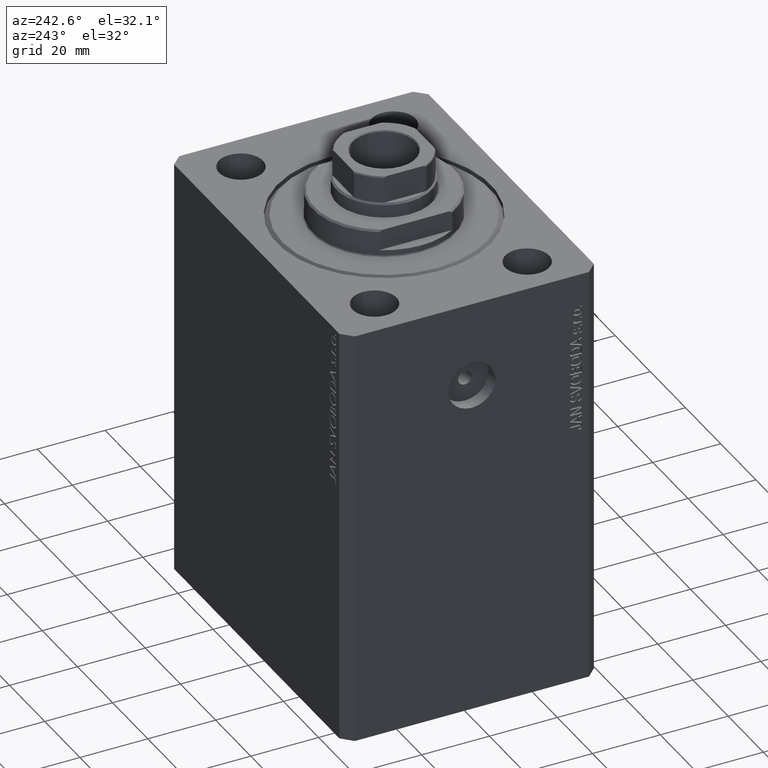
[diagram: clean part render]
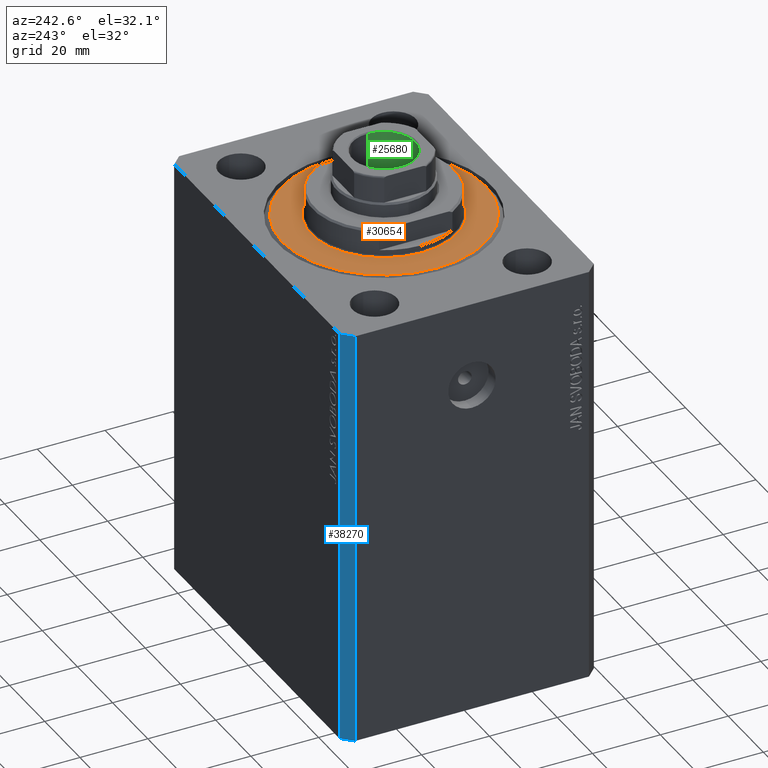
[diagram: same view with three faces highlighted in distinct colors, each labeled with its STEP entity id]
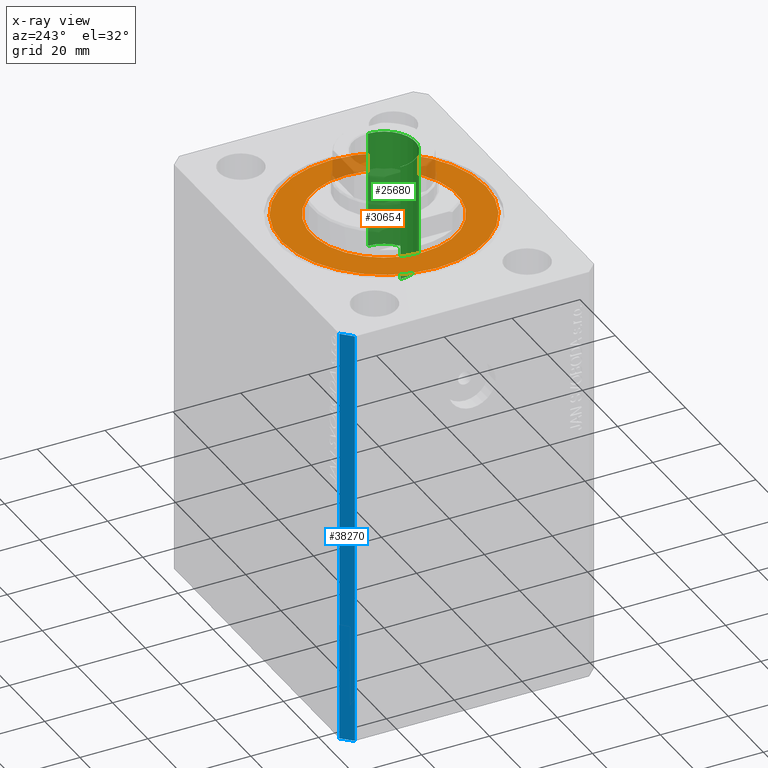
[diagram: x-ray of the same camera — body ghosted, the three highlighted faces saturated]
A machine part, auxiliary view with three faces highlighted in distinct colors.
The next image is the same camera in x-ray (body ghosted, the three faces saturated) — at least one of them is partly hidden behind the body in this view.
Their STEP definitions:

[orange] entity #30654 — the highlighted planar face has unit normal (0, 0, -1).
#51 = DIRECTION ( 'NONE',  ( 1.000000000000000000, 0.000000000000000000, 0.000000000000000000 ) ) ;
#1757 = CIRCLE ( 'NONE', #40681, 29.99999999999999289 ) ;
#3312 = VERTEX_POINT ( 'NONE', #16352 ) ;
#6315 = VERTEX_POINT ( 'NONE', #30309 ) ;
#6909 = DIRECTION ( 'NONE',  ( 1.000000000000000000, 0.000000000000000000, 0.000000000000000000 ) ) ;
#10116 = CIRCLE ( 'NONE', #32397, 21.50000000000000000 ) ;
#11425 = EDGE_CURVE ( 'NONE', #34316, #24518, #1757, .T. ) ;
#12112 = AXIS2_PLACEMENT_3D ( 'NONE', #41174, #37803, #6909 ) ;
#14254 = DIRECTION ( 'NONE',  ( 1.000000000000000000, 0.000000000000000000, 0.000000000000000000 ) ) ;
#14902 = AXIS2_PLACEMENT_3D ( 'NONE', #41103, #37732, #14254 ) ;
#16352 = CARTESIAN_POINT ( 'NONE',  ( -21.50000000000000000, 2.632990618166809630E-15, -2.168404344971008868E-16 ) ) ;
#16522 = DIRECTION ( 'NONE',  ( 0.000000000000000000, 0.000000000000000000, 1.000000000000000000 ) ) ;
#16680 = ORIENTED_EDGE ( 'NONE', *, *, #21722, .T. ) ;
#17257 = DIRECTION ( 'NONE',  ( 1.000000000000000000, 0.000000000000000000, -0.000000000000000000 ) ) ;
#18374 = EDGE_CURVE ( 'NONE', #24518, #34316, #22123, .T. ) ;
#19877 = AXIS2_PLACEMENT_3D ( 'NONE', #20424, #30778, #17257 ) ;
#20424 = CARTESIAN_POINT ( 'NONE',  ( 0.000000000000000000, 0.000000000000000000, 0.000000000000000000 ) ) ;
#21077 = FACE_BOUND ( 'NONE', #31396, .T. ) ;
#21570 = EDGE_LOOP ( 'NONE', ( #39380, #35363 ) ) ;
#21722 = EDGE_CURVE ( 'NONE', #6315, #3312, #10116, .T. ) ;
#22123 = CIRCLE ( 'NONE', #14902, 29.99999999999999289 ) ;
#22478 = CARTESIAN_POINT ( 'NONE',  ( 0.000000000000000000, 0.000000000000000000, 0.000000000000000000 ) ) ;
#22994 = EDGE_CURVE ( 'NONE', #3312, #6315, #30139, .T. ) ;
#24518 = VERTEX_POINT ( 'NONE', #26822 ) ;
#26259 = ORIENTED_EDGE ( 'NONE', *, *, #22994, .T. ) ;
#26822 = CARTESIAN_POINT ( 'NONE',  ( 29.99999999999999289, 0.000000000000000000, 0.000000000000000000 ) ) ;
#27767 = CARTESIAN_POINT ( 'NONE',  ( 0.000000000000000000, 0.000000000000000000, 0.000000000000000000 ) ) ;
#30139 = CIRCLE ( 'NONE', #12112, 21.50000000000000000 ) ;
#30309 = CARTESIAN_POINT ( 'NONE',  ( 21.50000000000000000, 0.000000000000000000, -2.168404344971008868E-16 ) ) ;
#30654 = ADVANCED_FACE ( 'NONE', ( #21077, #31217 ), #44314, .F. ) ;
#30778 = DIRECTION ( 'NONE',  ( 0.000000000000000000, 0.000000000000000000, 1.000000000000000000 ) ) ;
#31217 = FACE_OUTER_BOUND ( 'NONE', #21570, .T. ) ;
#31396 = EDGE_LOOP ( 'NONE', ( #16680, #26259 ) ) ;
#32397 = AXIS2_PLACEMENT_3D ( 'NONE', #27767, #16522, #51 ) ;
#34316 = VERTEX_POINT ( 'NONE', #34821 ) ;
#34821 = CARTESIAN_POINT ( 'NONE',  ( -29.99999999999999289, 3.765788907378110539E-15, 0.000000000000000000 ) ) ;
#35363 = ORIENTED_EDGE ( 'NONE', *, *, #11425, .T. ) ;
#37732 = DIRECTION ( 'NONE',  ( -0.000000000000000000, -0.000000000000000000, -1.000000000000000000 ) ) ;
#37803 = DIRECTION ( 'NONE',  ( 0.000000000000000000, 0.000000000000000000, 1.000000000000000000 ) ) ;
#39160 = DIRECTION ( 'NONE',  ( -0.000000000000000000, -0.000000000000000000, -1.000000000000000000 ) ) ;
#39380 = ORIENTED_EDGE ( 'NONE', *, *, #18374, .T. ) ;
#40681 = AXIS2_PLACEMENT_3D ( 'NONE', #22478, #39160, #43443 ) ;
#41103 = CARTESIAN_POINT ( 'NONE',  ( 0.000000000000000000, 0.000000000000000000, 0.000000000000000000 ) ) ;
#41174 = CARTESIAN_POINT ( 'NONE',  ( 0.000000000000000000, 0.000000000000000000, 0.000000000000000000 ) ) ;
#43443 = DIRECTION ( 'NONE',  ( 1.000000000000000000, 0.000000000000000000, 0.000000000000000000 ) ) ;
#44314 = PLANE ( 'NONE',  #19877 ) ;

[blue] entity #38270 — the highlighted planar face has unit normal (-0.7071, 0.7071, 0).
#1451 = EDGE_CURVE ( 'NONE', #23777, #27440, #11536, .T. ) ;
#1889 = DIRECTION ( 'NONE',  ( 0.000000000000000000, 0.000000000000000000, 1.000000000000000000 ) ) ;
#2471 = LINE ( 'NONE', #12162, #8943 ) ;
#2702 = CARTESIAN_POINT ( 'NONE',  ( -47.00000000000001421, 37.50000000000000000, -125.0000000000000000 ) ) ;
#5487 = CARTESIAN_POINT ( 'NONE',  ( -50.00000000000001421, 34.50000000000000000, -125.0000000000000000 ) ) ;
#5746 = EDGE_CURVE ( 'NONE', #27440, #15977, #2471, .T. ) ;
#8386 = DIRECTION ( 'NONE',  ( 0.000000000000000000, 0.000000000000000000, 1.000000000000000000 ) ) ;
#8943 = VECTOR ( 'NONE', #26368, 1000.000000000000000 ) ;
#11536 = LINE ( 'NONE', #18997, #29734 ) ;
#12162 = CARTESIAN_POINT ( 'NONE',  ( -47.00000000000001421, 37.50000000000000000, 0.000000000000000000 ) ) ;
#12931 = CARTESIAN_POINT ( 'NONE',  ( -50.00000000000001421, 34.50000000000000000, -125.0000000000000000 ) ) ;
#14399 = ORIENTED_EDGE ( 'NONE', *, *, #5746, .F. ) ;
#14491 = VECTOR ( 'NONE', #1889, 1000.000000000000000 ) ;
#15723 = CARTESIAN_POINT ( 'NONE',  ( -47.00000000000001421, 37.50000000000000000, -125.0000000000000000 ) ) ;
#15977 = VERTEX_POINT ( 'NONE', #21863 ) ;
#16825 = DIRECTION ( 'NONE',  ( -0.7071067811865466846, 0.7071067811865483499, 0.000000000000000000 ) ) ;
#18997 = CARTESIAN_POINT ( 'NONE',  ( -47.00000000000001421, 37.50000000000000000, -125.0000000000000000 ) ) ;
#19552 = VERTEX_POINT ( 'NONE', #12931 ) ;
#20282 = ORIENTED_EDGE ( 'NONE', *, *, #1451, .F. ) ;
#21032 = ORIENTED_EDGE ( 'NONE', *, *, #42193, .T. ) ;
#21075 = CARTESIAN_POINT ( 'NONE',  ( -47.00000000000001421, 37.50000000000000000, 0.000000000000000000 ) ) ;
#21863 = CARTESIAN_POINT ( 'NONE',  ( -50.00000000000001421, 34.50000000000000000, 0.000000000000000000 ) ) ;
#22747 = EDGE_CURVE ( 'NONE', #23777, #19552, #36236, .T. ) ;
#23286 = LINE ( 'NONE', #5487, #14491 ) ;
#23777 = VERTEX_POINT ( 'NONE', #2702 ) ;
#24246 = PLANE ( 'NONE',  #39610 ) ;
#24765 = EDGE_LOOP ( 'NONE', ( #14399, #20282, #37438, #21032 ) ) ;
#26368 = DIRECTION ( 'NONE',  ( -0.7071067811865483499, -0.7071067811865466846, 0.000000000000000000 ) ) ;
#27185 = FACE_OUTER_BOUND ( 'NONE', #24765, .T. ) ;
#27440 = VERTEX_POINT ( 'NONE', #21075 ) ;
#29734 = VECTOR ( 'NONE', #8386, 1000.000000000000000 ) ;
#34834 = CARTESIAN_POINT ( 'NONE',  ( -47.00000000000001421, 37.50000000000000000, -125.0000000000000000 ) ) ;
#36236 = LINE ( 'NONE', #15723, #36791 ) ;
#36791 = VECTOR ( 'NONE', #40066, 1000.000000000000000 ) ;
#37438 = ORIENTED_EDGE ( 'NONE', *, *, #22747, .T. ) ;
#38216 = DIRECTION ( 'NONE',  ( -0.7071067811865483499, -0.7071067811865466846, 0.000000000000000000 ) ) ;
#38270 = ADVANCED_FACE ( 'NONE', ( #27185 ), #24246, .T. ) ;
#39610 = AXIS2_PLACEMENT_3D ( 'NONE', #34834, #16825, #38216 ) ;
#40066 = DIRECTION ( 'NONE',  ( -0.7071067811865483499, -0.7071067811865466846, 0.000000000000000000 ) ) ;
#42193 = EDGE_CURVE ( 'NONE', #19552, #15977, #23286, .T. ) ;

[green] entity #25680 — the highlighted cylindrical surface (edge-blend (fillet) strip) has radius 9.25 mm, axis along (0, 0, 1).
#2888 = AXIS2_PLACEMENT_3D ( 'NONE', #26338, #26783, #43480 ) ;
#6599 = LINE ( 'NONE', #44256, #27773 ) ;
#6800 = CARTESIAN_POINT ( 'NONE',  ( -9.249999999999996447, 1.132798289211301304E-15, 133.0999999999999943 ) ) ;
#7730 = CARTESIAN_POINT ( 'NONE',  ( 0.000000000000000000, 0.000000000000000000, 98.09999999999999432 ) ) ;
#8965 = DIRECTION ( 'NONE',  ( 1.000000000000000000, 0.000000000000000000, 0.000000000000000000 ) ) ;
#8980 = EDGE_CURVE ( 'NONE', #31658, #25631, #37915, .T. ) ;
#9191 = FACE_OUTER_BOUND ( 'NONE', #15949, .T. ) ;
#9705 = VERTEX_POINT ( 'NONE', #26674 ) ;
#10349 = AXIS2_PLACEMENT_3D ( 'NONE', #36246, #29028, #8965 ) ;
#14022 = DIRECTION ( 'NONE',  ( -0.000000000000000000, -0.000000000000000000, 1.000000000000000000 ) ) ;
#15949 = EDGE_LOOP ( 'NONE', ( #27739, #44296, #39179, #25453 ) ) ;
#16179 = CYLINDRICAL_SURFACE ( 'NONE', #10349, 9.249999999999996447 ) ;
#18788 = CIRCLE ( 'NONE', #39641, 9.249999999999994671 ) ;
#20126 = VERTEX_POINT ( 'NONE', #38940 ) ;
#20476 = VECTOR ( 'NONE', #23257, 1000.000000000000000 ) ;
#23257 = DIRECTION ( 'NONE',  ( -0.000000000000000000, -0.000000000000000000, 1.000000000000000000 ) ) ;
#25453 = ORIENTED_EDGE ( 'NONE', *, *, #31039, .F. ) ;
#25631 = VERTEX_POINT ( 'NONE', #28578 ) ;
#25680 = ADVANCED_FACE ( 'NONE', ( #9191 ), #16179, .F. ) ;
#26338 = CARTESIAN_POINT ( 'NONE',  ( 0.000000000000000000, 0.000000000000000000, 132.8000000000000114 ) ) ;
#26666 = CIRCLE ( 'NONE', #2888, 9.249999999999996447 ) ;
#26674 = CARTESIAN_POINT ( 'NONE',  ( 9.249999999999996447, 0.000000000000000000, 132.8000000000000114 ) ) ;
#26783 = DIRECTION ( 'NONE',  ( 0.000000000000000000, 0.000000000000000000, 1.000000000000000000 ) ) ;
#27739 = ORIENTED_EDGE ( 'NONE', *, *, #39847, .F. ) ;
#27773 = VECTOR ( 'NONE', #14022, 1000.000000000000000 ) ;
#28269 = CARTESIAN_POINT ( 'NONE',  ( -9.249999999999994671, 1.132798289211300909E-15, 98.09999999999999432 ) ) ;
#28578 = CARTESIAN_POINT ( 'NONE',  ( -9.249999999999996447, 1.132798289211301304E-15, 132.8000000000000114 ) ) ;
#29028 = DIRECTION ( 'NONE',  ( -0.000000000000000000, -0.000000000000000000, 1.000000000000000000 ) ) ;
#31039 = EDGE_CURVE ( 'NONE', #20126, #9705, #6599, .T. ) ;
#31658 = VERTEX_POINT ( 'NONE', #28269 ) ;
#35235 = DIRECTION ( 'NONE',  ( 1.000000000000000000, 0.000000000000000000, 0.000000000000000000 ) ) ;
#36246 = CARTESIAN_POINT ( 'NONE',  ( 0.000000000000000000, 0.000000000000000000, 133.0999999999999943 ) ) ;
#37871 = EDGE_CURVE ( 'NONE', #25631, #9705, #26666, .T. ) ;
#37915 = LINE ( 'NONE', #6800, #20476 ) ;
#38940 = CARTESIAN_POINT ( 'NONE',  ( 9.249999999999994671, 0.000000000000000000, 98.09999999999999432 ) ) ;
#39059 = DIRECTION ( 'NONE',  ( -0.000000000000000000, -0.000000000000000000, 1.000000000000000000 ) ) ;
#39179 = ORIENTED_EDGE ( 'NONE', *, *, #37871, .T. ) ;
#39641 = AXIS2_PLACEMENT_3D ( 'NONE', #7730, #39059, #35235 ) ;
#39847 = EDGE_CURVE ( 'NONE', #31658, #20126, #18788, .T. ) ;
#43480 = DIRECTION ( 'NONE',  ( 1.000000000000000000, 0.000000000000000000, 0.000000000000000000 ) ) ;
#44256 = CARTESIAN_POINT ( 'NONE',  ( 9.249999999999996447, 0.000000000000000000, 133.0999999999999943 ) ) ;
#44296 = ORIENTED_EDGE ( 'NONE', *, *, #8980, .T. ) ;